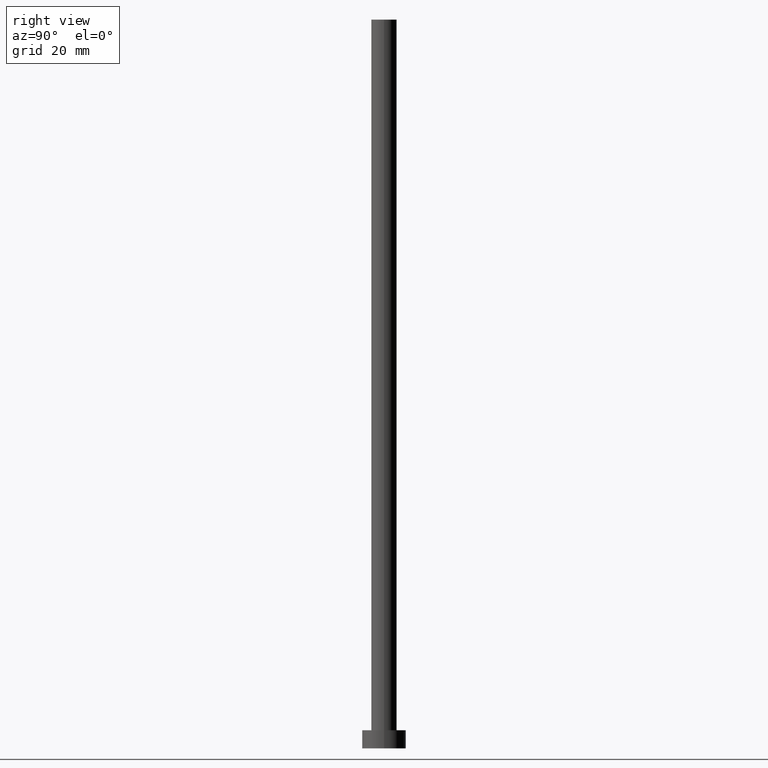
[diagram: clean part render]
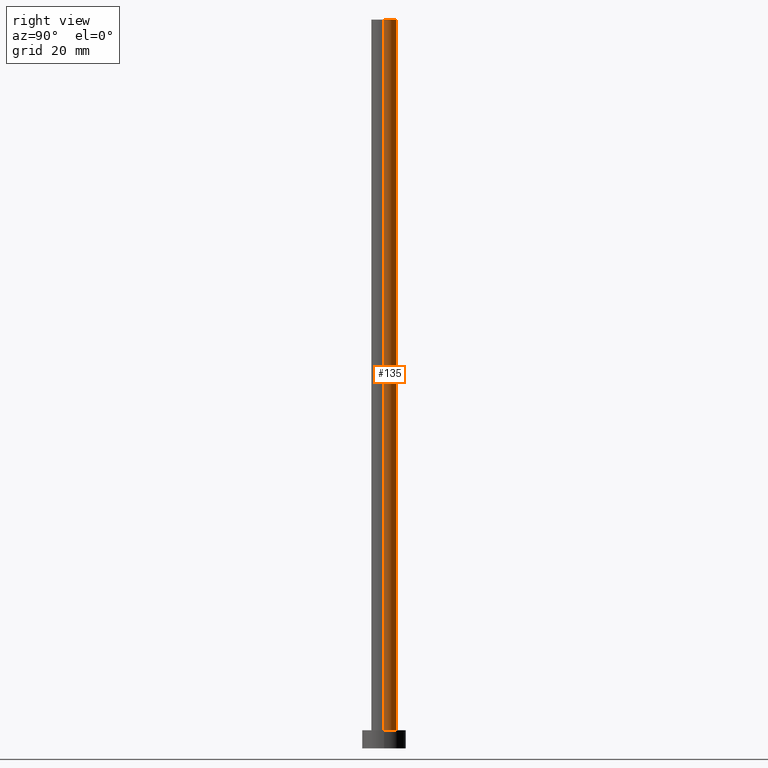
[diagram: same view with one face highlighted and labeled with its STEP entity id]
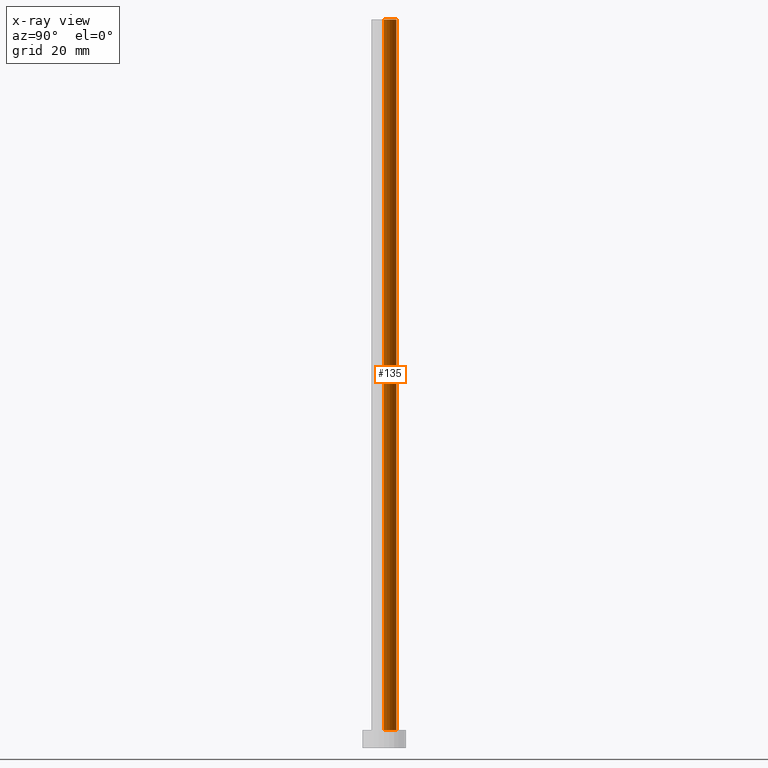
[diagram: x-ray of the same camera — body ghosted, the highlighted face saturated]
A machine part, right view. The second image highlights one B-rep face of the part: STEP entity #135.
The next image is the same camera in x-ray: the body ghosted, the highlighted face saturated — about 0% of this face is hidden behind the body in this view.
In plain terms, the highlighted cylindrical surface (edge-blend (fillet) strip) has radius 3.5 mm, axis along (-0, -0, -1).
Its self-contained STEP definition (entity closure, byte-faithful):
#6 = VERTEX_POINT ( 'NONE', #33 ) ;
#10 = VERTEX_POINT ( 'NONE', #140 ) ;
#14 = VECTOR ( 'NONE', #58, 1000.000000000000000 ) ;
#23 = EDGE_CURVE ( 'NONE', #35, #6, #136, .T. ) ;
#31 = CARTESIAN_POINT ( 'NONE',  ( -3.500000000000000000, 0.000000000000000000, 200.0000000000000000 ) ) ;
#33 = CARTESIAN_POINT ( 'NONE',  ( -3.500000000000000000, 0.000000000000000000, 5.000000000000000000 ) ) ;
#35 = VERTEX_POINT ( 'NONE', #191 ) ;
#37 = ORIENTED_EDGE ( 'NONE', *, *, #23, .F. ) ;
#40 = DIRECTION ( 'NONE',  ( 1.000000000000000000, 0.000000000000000000, 0.000000000000000000 ) ) ;
#43 = DIRECTION ( 'NONE',  ( -1.000000000000000000, 0.000000000000000000, 0.000000000000000000 ) ) ;
#56 = AXIS2_PLACEMENT_3D ( 'NONE', #131, #70, #200 ) ;
#58 = DIRECTION ( 'NONE',  ( -0.000000000000000000, -0.000000000000000000, -1.000000000000000000 ) ) ;
#70 = DIRECTION ( 'NONE',  ( 0.000000000000000000, 0.000000000000000000, 1.000000000000000000 ) ) ;
#75 = LINE ( 'NONE', #92, #14 ) ;
#79 = DIRECTION ( 'NONE',  ( -0.000000000000000000, -0.000000000000000000, -1.000000000000000000 ) ) ;
#87 = ORIENTED_EDGE ( 'NONE', *, *, #193, .T. ) ;
#91 = CARTESIAN_POINT ( 'NONE',  ( 3.500000000000000000, 4.286263797015736595E-16, 200.0000000000000000 ) ) ;
#92 = CARTESIAN_POINT ( 'NONE',  ( 3.500000000000000000, 4.286263797015736595E-16, 200.0000000000000000 ) ) ;
#95 = AXIS2_PLACEMENT_3D ( 'NONE', #220, #250, #40 ) ;
#105 = CYLINDRICAL_SURFACE ( 'NONE', #113, 3.500000000000000000 ) ;
#113 = AXIS2_PLACEMENT_3D ( 'NONE', #223, #116, #43 ) ;
#116 = DIRECTION ( 'NONE',  ( -0.000000000000000000, -0.000000000000000000, -1.000000000000000000 ) ) ;
#131 = CARTESIAN_POINT ( 'NONE',  ( 0.000000000000000000, 0.000000000000000000, 200.0000000000000000 ) ) ;
#135 = ADVANCED_FACE ( 'NONE', ( #211 ), #105, .T. ) ;
#136 = LINE ( 'NONE', #31, #190 ) ;
#140 = CARTESIAN_POINT ( 'NONE',  ( 3.500000000000000000, 4.286263797015736595E-16, 5.000000000000000000 ) ) ;
#166 = CIRCLE ( 'NONE', #56, 3.500000000000000000 ) ;
#172 = ORIENTED_EDGE ( 'NONE', *, *, #187, .T. ) ;
#184 = CIRCLE ( 'NONE', #95, 3.500000000000000000 ) ;
#187 = EDGE_CURVE ( 'NONE', #242, #10, #75, .T. ) ;
#190 = VECTOR ( 'NONE', #79, 1000.000000000000000 ) ;
#191 = CARTESIAN_POINT ( 'NONE',  ( -3.500000000000000000, 0.000000000000000000, 200.0000000000000000 ) ) ;
#193 = EDGE_CURVE ( 'NONE', #10, #6, #184, .T. ) ;
#196 = EDGE_LOOP ( 'NONE', ( #239, #172, #87, #37 ) ) ;
#200 = DIRECTION ( 'NONE',  ( 1.000000000000000000, 0.000000000000000000, 0.000000000000000000 ) ) ;
#211 = FACE_OUTER_BOUND ( 'NONE', #196, .T. ) ;
#220 = CARTESIAN_POINT ( 'NONE',  ( 0.000000000000000000, 0.000000000000000000, 5.000000000000000000 ) ) ;
#223 = CARTESIAN_POINT ( 'NONE',  ( 0.000000000000000000, 0.000000000000000000, 200.0000000000000000 ) ) ;
#225 = EDGE_CURVE ( 'NONE', #242, #35, #166, .T. ) ;
#239 = ORIENTED_EDGE ( 'NONE', *, *, #225, .F. ) ;
#242 = VERTEX_POINT ( 'NONE', #91 ) ;
#250 = DIRECTION ( 'NONE',  ( 0.000000000000000000, 0.000000000000000000, 1.000000000000000000 ) ) ;